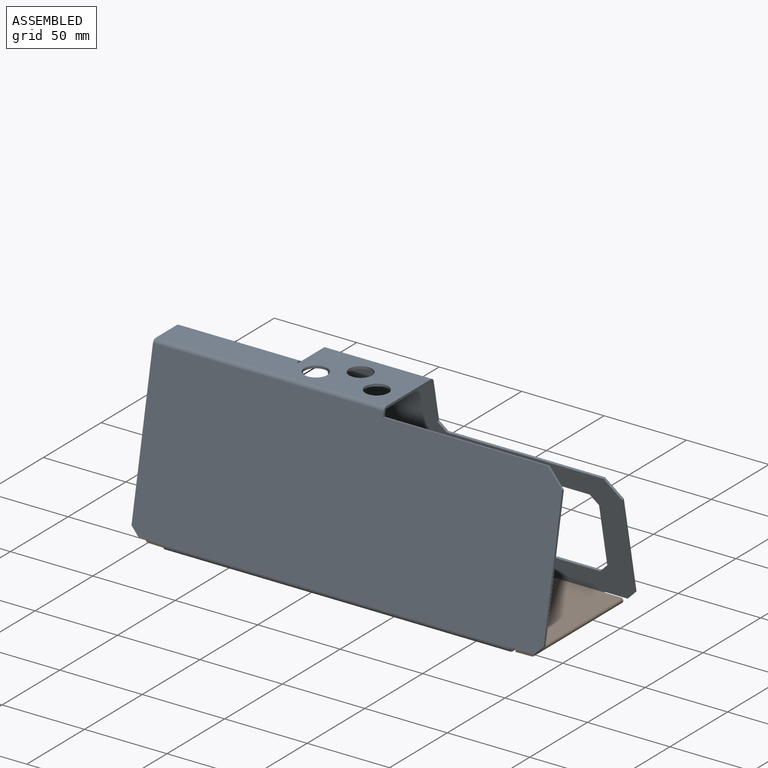
[diagram: assembled view]
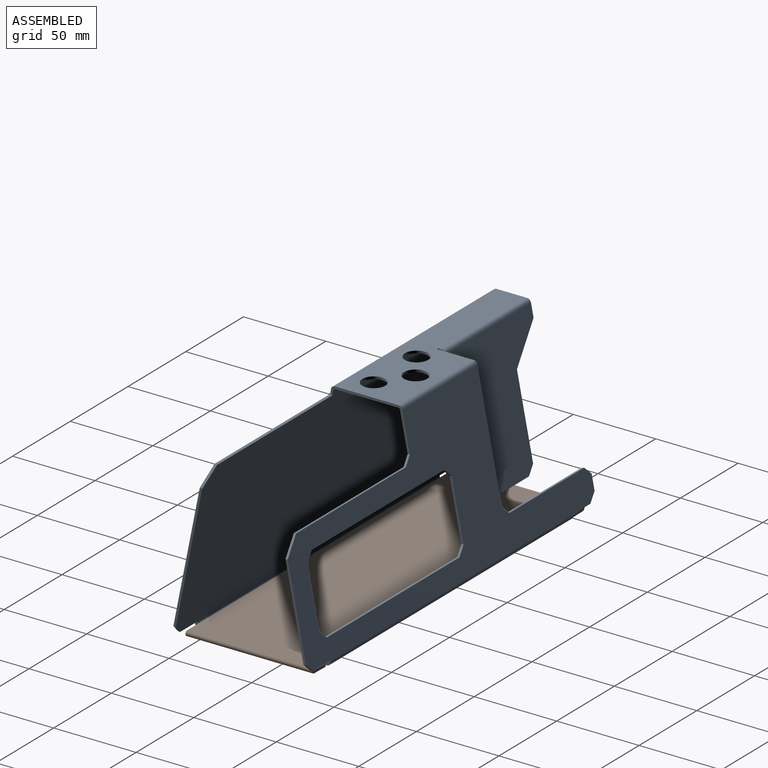
[diagram: assembled view, second angle]
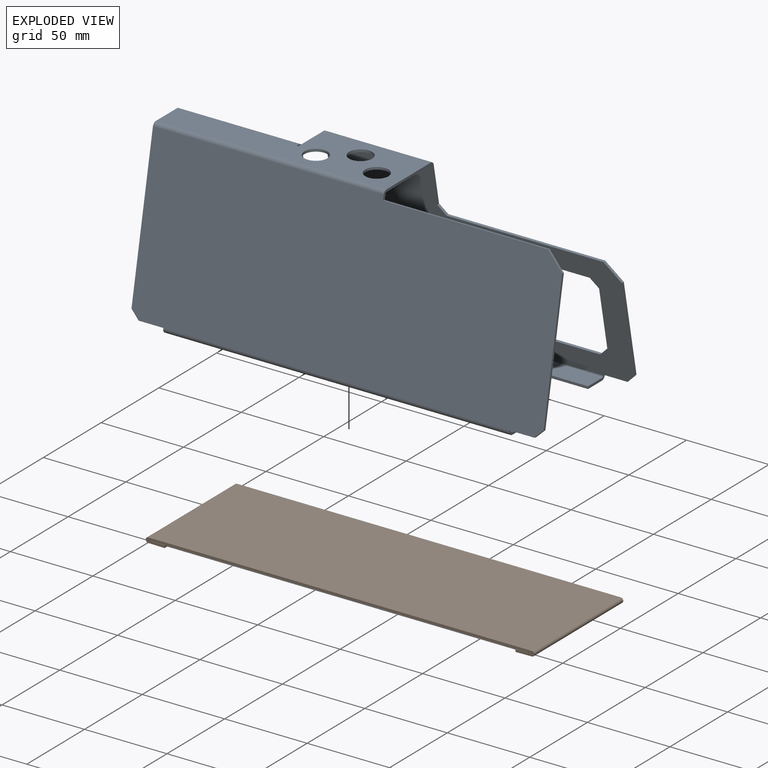
[diagram: exploded view]
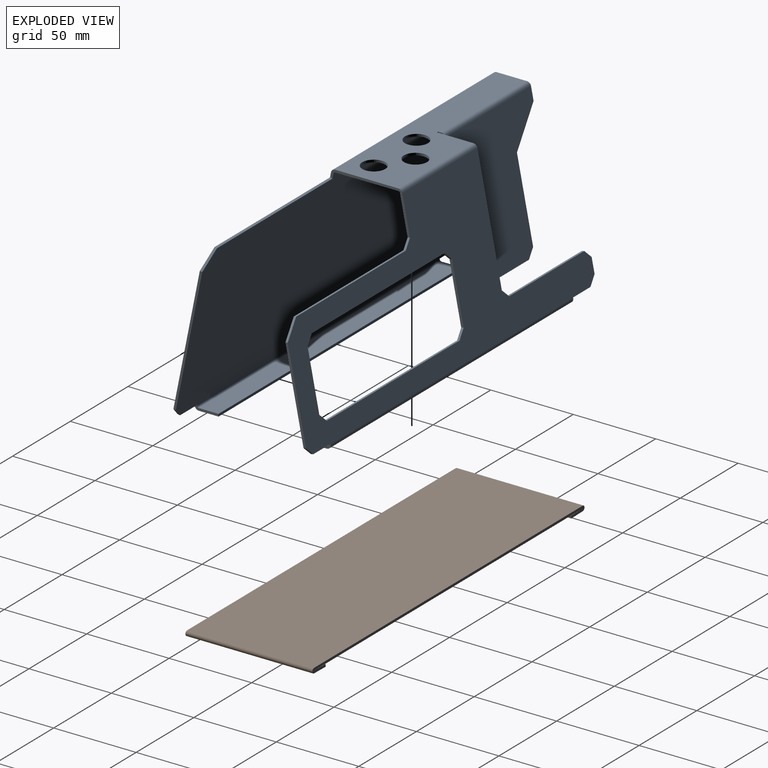
[diagram: exploded view, second angle]
ASSEMBLY  parts=2 mates=2
PART A: 90 faces, bbox 250x82.6x103 mm
  f0: plane 9.19x3.25mm, normal (-1,0,0), area 13.6mm2, adj f14,f15,f23,f24
  f1: plane 65x1.47mm, normal (0,-0.2,0.98), area 97.5mm2, adj f14,f15,f22,f23
  f2: plane 74.38x16.29mm, normal (-1,0,0), area 113.3mm2, adj f14,f15,f22,f77
  f3: plane 23.38x6.09mm, normal (1,0,0), area 35.3mm2, adj f14,f15,f25,f78
  f4: plane 95x1.47mm, normal (0,-0.2,0.98), area 142.5mm2, adj f14,f15,f18,f25
  f5: plane 55.29x12.47mm, normal (1,0,0), area 84.1mm2, adj f14,f15,f16,f18
  f6: plane 15x1.47mm, normal (0,0.2,-0.98), area 22.5mm2, adj f7,f14,f15,f16
  f7: plane 1.53x0.6mm, normal (1,0,0), area 0.5mm2, adj f6,f14,f15,f87
  f8: plane 1.53x0.6mm, normal (-1,0,0), area 0.5mm2, adj f13,f14,f15,f86
  f9: plane 115x1.47mm, normal (0,0.2,-0.98), area 172.5mm2, adj f14,f15,f20,f21
  f10: plane 35.98x8.61mm, normal (1,0,0), area 54.6mm2, adj f14,f15,f17,f20
  f11: plane 115x1.47mm, normal (0,-0.2,0.98), area 172.5mm2, adj f14,f15,f17,f19
  f12: plane 35.98x8.61mm, normal (-1,0,0), area 54.6mm2, adj f14,f15,f19,f21
  f13: plane 15x1.47mm, normal (0,0.2,-0.98), area 22.5mm2, adj f8,f14,f15,f24
  f14: plane 250x98mm, normal (0,0.98,0.2), area 9979.3mm2, adj f0,f1,f2,f3,f4,f5,f6,f7
  f15: plane 250x98mm, normal (0,-0.98,-0.2), area 9979.3mm2, adj f0,f1,f2,f3,f4,f5,f6,f7
  f16: plane 5.2x5mm, normal (0.71,0.14,-0.69), area 10.6mm2, adj f5,f6,f14,f15
  f17: plane 5.2x5mm, normal (0.71,-0.14,0.69), area 10.6mm2, adj f10,f11,f14,f15
  f18: plane 10.1x10mm, normal (0.71,-0.14,0.69), area 21.2mm2, adj f4,f5,f14,f15
  f19: plane 5.2x5mm, normal (-0.71,-0.14,0.69), area 10.6mm2, adj f11,f12,f14,f15
  f20: plane 5.2x5mm, normal (0.71,0.14,-0.69), area 10.6mm2, adj f9,f10,f14,f15
  f21: plane 5.2x5mm, normal (-0.71,0.14,-0.69), area 10.6mm2, adj f9,f12,f14,f15
  f22: plane 5.2x5mm, normal (-0.71,-0.14,0.69), area 10.6mm2, adj f1,f2,f14,f15
  f23: plane 5.2x5mm, normal (-0.71,-0.14,0.69), area 10.6mm2, adj f0,f1,f14,f15
  f24: plane 5.2x5mm, normal (-0.71,0.14,-0.69), area 10.6mm2, adj f0,f13,f14,f15
  f25: plane 5.2x5mm, normal (0.71,-0.14,0.69), area 10.6mm2, adj f3,f4,f14,f15
  f26: plane 18.36x1.5mm, normal (-1,0,0), area 27.5mm2, adj f34,f35,f60,f73
  f27: plane 38.36x1.5mm, normal (1,0,0), area 57.5mm2, adj f34,f35,f61,f78
  f28: plane 21.73x1.5mm, normal (-1,0,0), area 32.6mm2, adj f34,f35,f36,f77
  f29: plane 1.5x0.4mm, normal (0,1,0), area 0.6mm2, adj f34,f35,f36,f37
  f30: cylinder r=7mm len=14mm, axis (0,0,-1), area 66mm2, adj f34,f35
  f31: cylinder r=7mm len=14mm, axis (0,0,-1), area 66mm2, adj f34,f35
  f32: cylinder r=7mm len=14mm, axis (0,0,-1), area 66mm2, adj f34,f35
  f33: plane 1.73x1.5mm, normal (1,0,0), area 2.6mm2, adj f34,f35,f37,f74
  f34: plane 140x38.36mm, normal (0,0,1), area 3406.6mm2, adj f26,f27,f28,f29,f30,f31,f32,f33
  f35: plane 140x38.36mm, normal (0,0,-1), area 3406.6mm2, adj f26,f27,f28,f29,f30,f31,f32,f33
  f36: cylinder r=0.3mm len=1.5mm, axis (0,0,-1), area 0.7mm2, adj f28,f29,f34,f35
  f37: cylinder r=0.3mm len=1.5mm, axis (0,0,-1), area 0.7mm2, adj f29,f33,f34,f35
  f38: plane 1.53x0.6mm, normal (1,0,0), area 0.5mm2, adj f39,f46,f47,f57
  f39: plane 15x1.47mm, normal (0,-0.2,-0.98), area 22.5mm2, adj f38,f46,f47,f49
  f40: plane 80.29x17.47mm, normal (1,0,0), area 122.4mm2, adj f46,f47,f49,f50
  f41: plane 100x1.47mm, normal (0,0.2,0.98), area 150mm2, adj f42,f46,f47,f50
  f42: plane 3.28x2.07mm, normal (1,0,0), area 4.6mm2, adj f41,f46,f47,f61
  f43: plane 93.09x20.03mm, normal (-1,0,0), area 141.9mm2, adj f46,f47,f48,f60
  f44: plane 15x1.47mm, normal (0,-0.2,-0.98), area 22.5mm2, adj f45,f46,f47,f48
  f45: plane 1.53x0.6mm, normal (-1,0,0), area 0.5mm2, adj f44,f46,f47,f56
  f46: plane 250x98mm, normal (0,-0.98,0.2), area 24562.4mm2, adj f38,f39,f40,f41,f42,f43,f44,f45
  f47: plane 250x98mm, normal (0,0.98,-0.2), area 24562.4mm2, adj f38,f39,f40,f41,f42,f43,f44,f45
  f48: plane 5.2x5mm, normal (-0.71,-0.14,-0.69), area 10.6mm2, adj f43,f44,f46,f47
  f49: plane 5.2x5mm, normal (0.71,-0.14,-0.69), area 10.6mm2, adj f39,f40,f46,f47
  f50: plane 10.1x10mm, normal (0.71,0.14,0.69), area 21.2mm2, adj f40,f41,f46,f47
  f51: plane 210x1.5mm, normal (0,1,0), area 315mm2, adj f52,f53,f54,f55
  f52: plane 11.95x1.5mm, normal (1,0,0), area 17.9mm2, adj f51,f54,f55,f57
  f53: plane 11.95x1.5mm, normal (-1,0,0), area 17.9mm2, adj f51,f54,f55,f56
  f54: plane 210x11.95mm, normal (0,0,-1), area 2509.6mm2, adj f51,f52,f53,f58
  f55: plane 210x11.95mm, normal (0,0,1), area 2509.6mm2, adj f51,f52,f53,f59
  f56: plane 2.99x2.5mm, normal (-1,0,0), area 4.6mm2, adj f45,f53,f58,f59
  f57: plane 2.99x2.5mm, normal (1,0,0), area 4.6mm2, adj f38,f52,f58,f59
  f58: cylinder r=2.5mm len=210mm, axis (-1,0,0), area 928.3mm2, adj f46,f54,f56,f57
  f59: cylinder r=1mm len=210mm, axis (-1,0,0), area 371.3mm2, adj f47,f55,f56,f57
  f60: plane 2.45x2.3mm, normal (-1,0,0), area 3.6mm2, adj f26,f43,f62,f63
  f61: plane 2.45x2.3mm, normal (1,0,0), area 3.6mm2, adj f27,f42,f62,f63
  f62: cylinder r=2.5mm len=140mm, axis (-1,0,0), area 480.7mm2, adj f34,f46,f60,f61
  f63: cylinder r=1mm len=140mm, axis (-1,0,0), area 192.3mm2, adj f35,f47,f60,f61
  f64: plane 40x1.47mm, normal (0,0.2,-0.98), area 60mm2, adj f69,f70,f71,f72
  f65: plane 49.32x11.28mm, normal (-1,0,0), area 75mm2, adj f66,f69,f70,f71
  f66: plane 20x19.91mm, normal (-0.71,0.14,-0.69), area 42.4mm2, adj f65,f67,f69,f70
  f67: plane 8.09x3.03mm, normal (-1,0,0), area 11.9mm2, adj f66,f69,f70,f73
  f68: plane 72.81x15.97mm, normal (1,0,0), area 110.9mm2, adj f69,f70,f72,f74
  f69: plane 81.34x74mm, normal (0,0.98,0.2), area 4785.3mm2, adj f64,f65,f66,f67,f68,f71,f72,f75
  f70: plane 81.34x74mm, normal (0,-0.98,-0.2), area 4785.3mm2, adj f64,f65,f66,f67,f68,f71,f72,f76
  f71: plane 5.2x5mm, normal (-0.71,0.14,-0.69), area 10.6mm2, adj f64,f65,f69,f70
  f72: plane 9.12x9mm, normal (0.71,0.14,-0.69), area 19.1mm2, adj f64,f68,f69,f70
  f73: plane 2.45x2.3mm, normal (-1,0,0), area 3.6mm2, adj f26,f67,f75,f76
  f74: plane 2.45x2.3mm, normal (1,0,0), area 3.6mm2, adj f33,f68,f75,f76
  f75: cylinder r=2.5mm len=74mm, axis (-1,0,0), area 254.1mm2, adj f34,f69,f73,f74
  f76: cylinder r=1mm len=74mm, axis (-1,0,0), area 101.6mm2, adj f35,f70,f73,f74
  f77: plane 2.45x2.3mm, normal (-1,0,0), area 3.6mm2, adj f2,f28,f79,f80
  f78: plane 2.45x2.3mm, normal (1,0,0), area 3.6mm2, adj f3,f27,f79,f80
  f79: cylinder r=2.5mm len=65mm, axis (-1,0,0), area 223.2mm2, adj f14,f34,f77,f78
  f80: cylinder r=1mm len=65mm, axis (-1,0,0), area 89.3mm2, adj f15,f35,f77,f78
  f81: plane 11.95x1.5mm, normal (1,0,0), area 17.9mm2, adj f82,f84,f85,f87
  f82: plane 210x1.5mm, normal (0,-1,0), area 315mm2, adj f81,f83,f84,f85
  f83: plane 11.95x1.5mm, normal (-1,0,0), area 17.9mm2, adj f82,f84,f85,f86
  f84: plane 210x11.95mm, normal (0,0,-1), area 2509.6mm2, adj f81,f82,f83,f88
  f85: plane 210x11.95mm, normal (0,0,1), area 2509.6mm2, adj f81,f82,f83,f89
  f86: plane 2.99x2.5mm, normal (-1,0,0), area 4.6mm2, adj f8,f83,f88,f89
  f87: plane 2.99x2.5mm, normal (1,0,0), area 4.6mm2, adj f7,f81,f88,f89
  f88: cylinder r=2.5mm len=210mm, axis (-1,0,0), area 928.3mm2, adj f14,f84,f86,f87
  f89: cylinder r=1mm len=210mm, axis (-1,0,0), area 371.3mm2, adj f15,f85,f86,f87
PART B: 22 faces, bbox 235.7x77x3.2 mm
  f0: plane 232.71x1.5mm, normal (0,-1,0), area 349.1mm2, adj f2,f3,f9,f19
  f1: plane 232.71x1.5mm, normal (0,1,0), area 349.1mm2, adj f2,f3,f10,f18
  f2: plane 232.71x77mm, normal (0,0,-1), area 17918.5mm2, adj f0,f1,f12,f21
  f3: plane 232.71x77mm, normal (0,0,1), area 17918.5mm2, adj f0,f1,f11,f20
  f4: plane 77x1.5mm, normal (1,0,-0.02), area 115.5mm2, adj f5,f6,f7,f8
  f5: bspline ~10x1.67mm, area 15mm2, adj f4,f7,f8,f10
  f6: plane 10x1.67mm, normal (0,-1,0), area 15mm2, adj f4,f7,f8,f9
  f7: plane 77x9.97mm, normal (0.02,0,1), area 767.8mm2, adj f4,f5,f6,f12
  f8: plane 77x9.97mm, normal (-0.02,0,-1), area 767.8mm2, adj f4,f5,f6,f11
  f9: plane 3.02x1.51mm, normal (0,-1,0), area 3.6mm2, adj f0,f6,f11,f12
  f10: plane 3.02x1.51mm, normal (0,1,0), area 3.6mm2, adj f1,f5,f11,f12
  f11: cylinder r=1.51mm len=77mm, axis (0,-1,0), area 363.2mm2, adj f3,f8,f9,f10
  f12: cylinder r=0.01mm len=77mm, axis (0,-1,0), area 2.4mm2, adj f2,f7,f9,f10
  f13: plane 77x1.5mm, normal (-1,0,-0.02), area 115.5mm2, adj f14,f15,f16,f17
  f14: plane 10x1.67mm, normal (0,-1,0), area 15mm2, adj f13,f16,f17,f19
  f15: plane 10x1.67mm, normal (0,1,0), area 15mm2, adj f13,f16,f17,f18
  f16: plane 77x9.97mm, normal (-0.02,0,1), area 767.8mm2, adj f13,f14,f15,f21
  f17: plane 77x9.97mm, normal (0.02,0,-1), area 767.8mm2, adj f13,f14,f15,f20
  f18: plane 3.02x1.51mm, normal (0,1,0), area 3.6mm2, adj f1,f15,f20,f21
  f19: plane 3.02x1.51mm, normal (0,-1,0), area 3.6mm2, adj f0,f14,f20,f21
  f20: cylinder r=1.51mm len=77mm, axis (0,1,0), area 363.2mm2, adj f3,f17,f18,f19
  f21: cylinder r=0.01mm len=77mm, axis (0,1,0), area 2.4mm2, adj f2,f16,f18,f19
PLACE A t=(-10.48,2.98,36.55)mm fixed
PLACE B t=(-10.56,3.51,36.55)mm
MATE planar B.f2 <-> A.f55  axis (0,0,-1) through (-10.56,3.51,36.55)mm
MATE parallel A.f55 <-> B.f2  axis (0,0,1) through (-10.48,-29.83,36.55)mm
